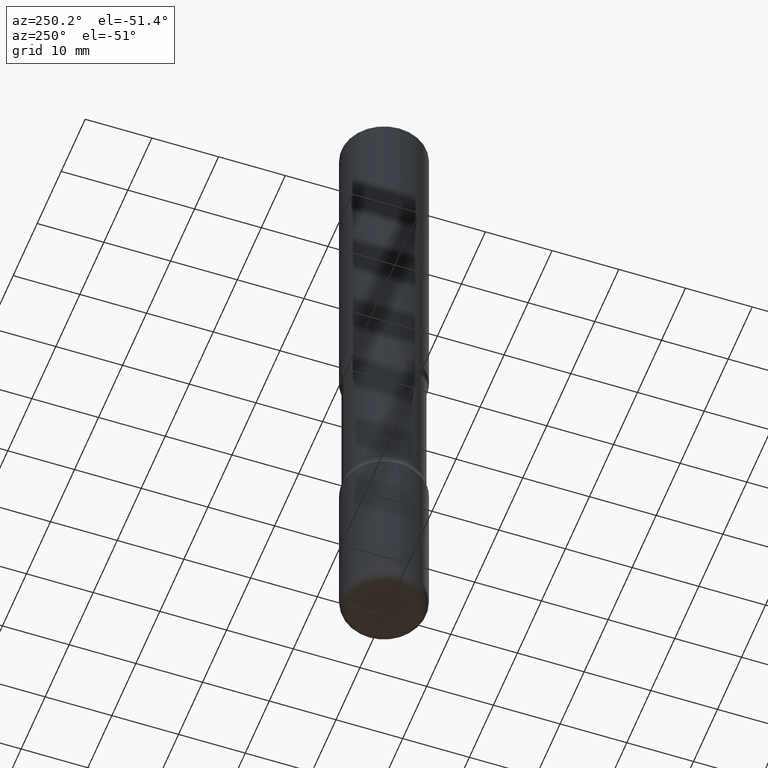
[diagram: clean part render]
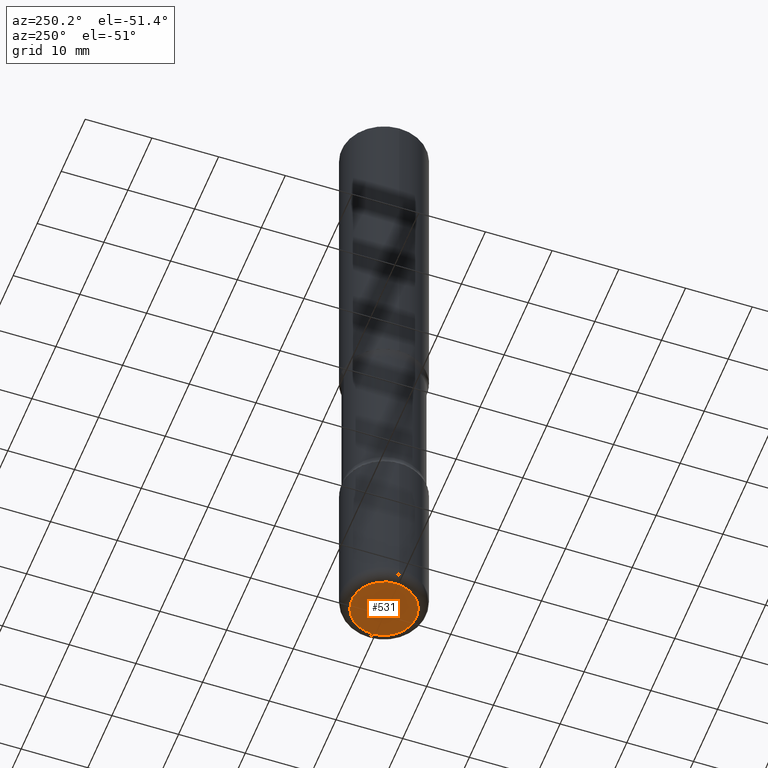
[diagram: same view with one face highlighted and labeled with its STEP entity id]
A machine part, auxiliary view. The second image highlights one B-rep face of the part: STEP entity #531.
In plain terms, the highlighted planar face has unit normal (0, -0, -1).
Its self-contained STEP definition (entity closure, byte-faithful):
#34 = EDGE_CURVE ( 'NONE', #516, #555, #178, .T. ) ;
#40 = PLANE ( 'NONE',  #367 ) ;
#98 = DIRECTION ( 'NONE',  ( -2.445468806185136597E-29, 3.491481338843145583E-15, 1.000000000000000000 ) ) ;
#113 = CARTESIAN_POINT ( 'NONE',  ( 0.1900000000000003630, -1.529268826413297711E-14, -4.000000000000000000 ) ) ;
#129 = CARTESIAN_POINT ( 'NONE',  ( 9.781875224740546387E-29, -1.396592535537258233E-14, -4.000000000000000000 ) ) ;
#152 = DIRECTION ( 'NONE',  ( 2.438088387897960049E-29, -3.491481338843145188E-15, -1.000000000000000000 ) ) ;
#178 = CIRCLE ( 'NONE', #402, 0.1900000000000003630 ) ;
#182 = EDGE_LOOP ( 'NONE', ( #306, #548 ) ) ;
#224 = CIRCLE ( 'NONE', #322, 0.1900000000000003630 ) ;
#284 = DIRECTION ( 'NONE',  ( -1.000000000000000000, 6.982962677686265922E-15, -4.876176775795935793E-29 ) ) ;
#289 = CARTESIAN_POINT ( 'NONE',  ( -0.1900000000000003630, -1.229798689653506559E-14, -4.000000000000000000 ) ) ;
#306 = ORIENTED_EDGE ( 'NONE', *, *, #434, .F. ) ;
#322 = AXIS2_PLACEMENT_3D ( 'NONE', #129, #98, #517 ) ;
#367 = AXIS2_PLACEMENT_3D ( 'NONE', #542, #152, #284 ) ;
#371 = CARTESIAN_POINT ( 'NONE',  ( 9.781875224740546387E-29, -1.396592535537258233E-14, -4.000000000000000000 ) ) ;
#402 = AXIS2_PLACEMENT_3D ( 'NONE', #371, #536, #534 ) ;
#434 = EDGE_CURVE ( 'NONE', #555, #516, #224, .T. ) ;
#460 = FACE_OUTER_BOUND ( 'NONE', #182, .T. ) ;
#516 = VERTEX_POINT ( 'NONE', #289 ) ;
#517 = DIRECTION ( 'NONE',  ( 1.000000000000000000, -6.982962677686269077E-15, 0.000000000000000000 ) ) ;
#531 = ADVANCED_FACE ( 'NONE', ( #460 ), #40, .T. ) ;
#534 = DIRECTION ( 'NONE',  ( 1.000000000000000000, -6.982962677686269077E-15, 0.000000000000000000 ) ) ;
#536 = DIRECTION ( 'NONE',  ( -2.445468806185136597E-29, 3.491481338843145583E-15, 1.000000000000000000 ) ) ;
#542 = CARTESIAN_POINT ( 'NONE',  ( 9.781875224740546387E-29, -1.396592535537258233E-14, -4.000000000000000000 ) ) ;
#548 = ORIENTED_EDGE ( 'NONE', *, *, #34, .F. ) ;
#555 = VERTEX_POINT ( 'NONE', #113 ) ;